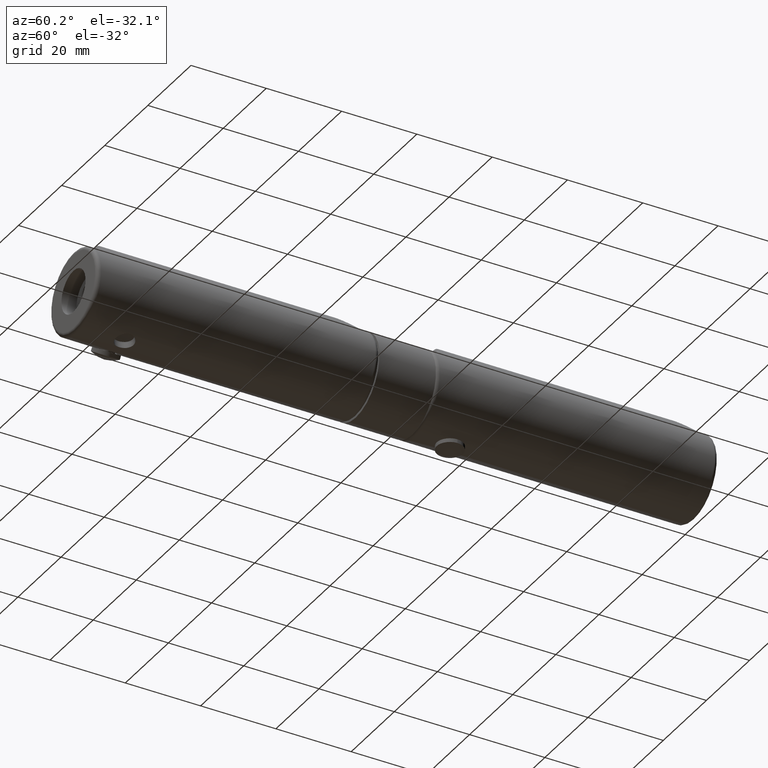
[diagram: clean part render]
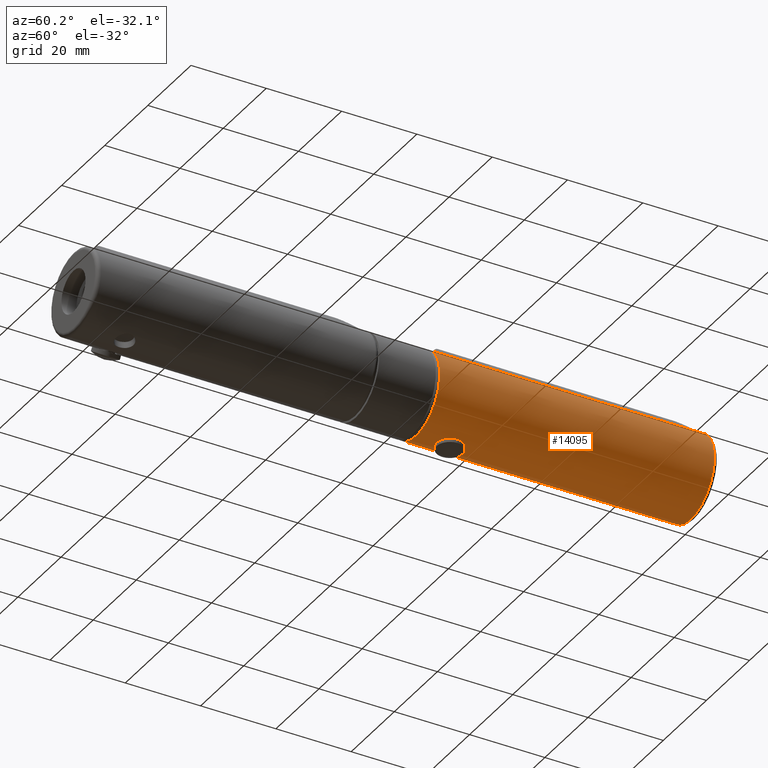
[diagram: same view with one face highlighted and labeled with its STEP entity id]
A machine part, auxiliary view. The second image highlights one B-rep face of the part: STEP entity #14095.
In plain terms, the highlighted cylindrical surface (bore or boss wall) has radius 11 mm, axis along (0, 1, 0).
Its self-contained STEP definition (entity closure, byte-faithful):
#323 = EDGE_CURVE ( 'NONE', #6508, #14559, #1928, .T. ) ;
#363 = AXIS2_PLACEMENT_3D ( 'NONE', #16258, #7394, #14999 ) ;
#472 = DIRECTION ( 'NONE',  ( 0.000000000000000000, -1.000000000000000000, 0.000000000000000000 ) ) ;
#535 = DIRECTION ( 'NONE',  ( -2.465190328815639121E-31, 0.000000000000000000, -1.000000000000000000 ) ) ;
#665 = CARTESIAN_POINT ( 'NONE',  ( -1.999956808515908957, 25.96449531061050209, -10.81921361551920135 ) ) ;
#719 = CARTESIAN_POINT ( 'NONE',  ( -1.652085630483463241, 25.61651558506136439, -10.87586390559808436 ) ) ;
#778 = CARTESIAN_POINT ( 'NONE',  ( 1.651020247030272170, 25.61567168080240364, -10.87601884763379623 ) ) ;
#882 = CARTESIAN_POINT ( 'NONE',  ( -0.6488575334635423575, 29.91984350061892073, -10.98201595571192613 ) ) ;
#893 = VERTEX_POINT ( 'NONE', #10747 ) ;
#1395 = EDGE_CURVE ( 'NONE', #8009, #14559, #4866, .T. ) ;
#1697 = ORIENTED_EDGE ( 'NONE', *, *, #1395, .F. ) ;
#1704 = CARTESIAN_POINT ( 'NONE',  ( -7.293008042015120651, -34.31640379061051505, 8.234806233245867801 ) ) ;
#1928 = CIRCLE ( 'NONE', #2630, 11.00000000000009948 ) ;
#1952 = CARTESIAN_POINT ( 'NONE',  ( 1.107559695936178201, 25.25280829105755487, -10.94514283014928147 ) ) ;
#2015 = CARTESIAN_POINT ( 'NONE',  ( 1.988350180081568386, 29.02423366750890921, -10.81919769480480653 ) ) ;
#2063 = CARTESIAN_POINT ( 'NONE',  ( -1.109823838377493210, 25.25388948399015732, -10.94491919029159277 ) ) ;
#2085 = ORIENTED_EDGE ( 'NONE', *, *, #323, .T. ) ;
#2119 = CARTESIAN_POINT ( 'NONE',  ( -2.483739591088216514, 27.17162348488600543, -10.71597479955624976 ) ) ;
#2177 = CARTESIAN_POINT ( 'NONE',  ( 2.167882144518500365, 26.24432027942801682, -10.78465457047772702 ) ) ;
#2279 = ORIENTED_EDGE ( 'NONE', *, *, #8944, .T. ) ;
#2406 = B_SPLINE_CURVE_WITH_KNOTS ( 'NONE', 3,
 ( #8181, #4477, #3370, #882, #8351, #7008, #13478, #14659, #4587, #13268, #5887, #3426, #14607, #9668, #12069, #8241, #2119, #8296, #15772, #5721, #665, #719, #9448, #12234, #2063, #14551, #10954, #12177, #14720, #7122, #4693, #1952, #6945, #15824, #778, #10899, #10727, #2177, #3206, #12117, #12015, #15988, #4640, #9617, #9501, #7071, #13432, #2015, #8405, #10788, #3256, #4534, #13320, #9554, #5774, #15874 ),
 .UNSPECIFIED., .T., .F.,
 ( 4, 2, 2, 2, 2, 2, 2, 2, 2, 2, 2, 2, 2, 2, 2, 2, 2, 2, 2, 2, 2, 2, 2, 2, 2, 2, 2, 4 ),
 ( 0.000000000000000000, 0.0004900491585293532699, 0.0009800983170587063229, 0.001470147475588059593, 0.001960196634117412646, 0.002940294951176118752, 0.003430344109705472239, 0.003920393268234825292, 0.004410442426764178345, 0.004900491585293531398, 0.005880589902352227963, 0.006370639060881576679, 0.006860688219410924528, 0.007350737377940272377, 0.007840786536469619358, 0.008820884853528315056, 0.009310934012057663772, 0.009800983170587010754, 0.01029103232911635947, 0.01078108148764570645, 0.01176117980470439348, 0.01225122896323373699, 0.01274127812176308050, 0.01323132728029242228, 0.01372137643882176579, 0.01470147475588045108, 0.01519152391440979286, 0.01568157307293913463 ),
 .UNSPECIFIED. ) ;
#2520 = LINE ( 'NONE', #4017, #8394 ) ;
#2630 = AXIS2_PLACEMENT_3D ( 'NONE', #9013, #4031, #2925 ) ;
#2742 = EDGE_LOOP ( 'NONE', ( #8957 ) ) ;
#2925 = DIRECTION ( 'NONE',  ( 2.465190328815639121E-31, 0.000000000000000000, 1.000000000000000000 ) ) ;
#3206 = CARTESIAN_POINT ( 'NONE',  ( 2.244920554423249115, 26.38762383493446251, -10.76868184056639777 ) ) ;
#3256 = CARTESIAN_POINT ( 'NONE',  ( 1.261791260852987984, 29.68266573074431491, -10.93156164976156042 ) ) ;
#3370 = CARTESIAN_POINT ( 'NONE',  ( -0.3286086563969000118, 29.98368174635178462, -10.99625876838048910 ) ) ;
#3376 = CARTESIAN_POINT ( 'NONE',  ( 0.000000000000000000, 36.49999999999997868, 0.000000000000000000 ) ) ;
#3426 = CARTESIAN_POINT ( 'NONE',  ( -2.371145507081335868, 28.30879520875879152, -10.74158953670655592 ) ) ;
#3662 = EDGE_CURVE ( 'NONE', #893, #893, #11113, .T. ) ;
#3727 = CARTESIAN_POINT ( 'NONE',  ( -7.293008042015120651, 34.31640379061051505, 8.234806233245867801 ) ) ;
#4017 = CARTESIAN_POINT ( 'NONE',  ( 7.293008042015121539, 37.49999999999997868, 8.234806233245864249 ) ) ;
#4031 = DIRECTION ( 'NONE',  ( 1.368455531567204171E-47, -1.000000000000000000, 6.938893903907280147E-17 ) ) ;
#4477 = CARTESIAN_POINT ( 'NONE',  ( -0.1657421987218730131, 29.99999999999996803, -11.00000000000007105 ) ) ;
#4507 = ORIENTED_EDGE ( 'NONE', *, *, #8902, .T. ) ;
#4534 = CARTESIAN_POINT ( 'NONE',  ( 0.8106389717548497797, 29.87052761574395987, -10.97112819082877166 ) ) ;
#4587 = CARTESIAN_POINT ( 'NONE',  ( -1.653202646344086313, 29.38237116042368058, -10.87568234456730210 ) ) ;
#4640 = CARTESIAN_POINT ( 'NONE',  ( 2.484025723721581702, 27.82612146208387571, -10.71590788550277829 ) ) ;
#4693 = CARTESIAN_POINT ( 'NONE',  ( 0.6558910415512544390, 25.06565344110171267, -10.98458770966550802 ) ) ;
#4866 = LINE ( 'NONE', #9147, #11146 ) ;
#5456 = FACE_BOUND ( 'NONE', #10983, .T. ) ;
#5721 = CARTESIAN_POINT ( 'NONE',  ( -2.183769885702495639, 26.23945554392442858, -10.78182195302494684 ) ) ;
#5774 = CARTESIAN_POINT ( 'NONE',  ( 0.1657421987218688220, 29.99999999999996803, -11.00000000000007461 ) ) ;
#5887 = CARTESIAN_POINT ( 'NONE',  ( -2.183862739981285550, 28.75962945137616700, -10.78179255487066257 ) ) ;
#6143 = EDGE_LOOP ( 'NONE', ( #2279 ) ) ;
#6226 = CYLINDRICAL_SURFACE ( 'NONE', #15901, 11.00000000000009948 ) ;
#6508 = VERTEX_POINT ( 'NONE', #12113 ) ;
#6938 = EDGE_LOOP ( 'NONE', ( #4507 ) ) ;
#6945 = CARTESIAN_POINT ( 'NONE',  ( 1.253719522869382486, 25.33091964188465184, -10.92917896778496889 ) ) ;
#7008 = CARTESIAN_POINT ( 'NONE',  ( -1.110435784794108649, 29.74583125934363181, -10.94486109688254771 ) ) ;
#7071 = CARTESIAN_POINT ( 'NONE',  ( 2.246882846291374580, 28.60824222040786324, -10.76826869899240080 ) ) ;
#7122 = CARTESIAN_POINT ( 'NONE',  ( 0.3258589452639140127, 24.99986420757655381, -11.00003086191187762 ) ) ;
#7394 = DIRECTION ( 'NONE',  ( -0.000000000000000000, 1.000000000000000000, 0.000000000000000000 ) ) ;
#7408 = AXIS2_PLACEMENT_3D ( 'NONE', #14969, #16182, #14905 ) ;
#7728 = DIRECTION ( 'NONE',  ( 0.000000000000000000, -1.000000000000000000, 0.000000000000000000 ) ) ;
#8009 = VERTEX_POINT ( 'NONE', #3727 ) ;
#8181 = CARTESIAN_POINT ( 'NONE',  ( 2.574980159653073031E-16, 29.99999999999996803, -11.00000000000007283 ) ) ;
#8241 = CARTESIAN_POINT ( 'NONE',  ( -2.500100012647283876, 27.33789890275445345, -10.71211930186590067 ) ) ;
#8296 = CARTESIAN_POINT ( 'NONE',  ( -2.419717851548156329, 26.85057024173767104, -10.73061246061765850 ) ) ;
#8351 = CARTESIAN_POINT ( 'NONE',  ( -0.8079343238143870121, 29.87151171323248988, -10.97133967164480062 ) ) ;
#8394 = VECTOR ( 'NONE', #7728, 1000.000000000000000 ) ;
#8405 = CARTESIAN_POINT ( 'NONE',  ( 1.883746366241870085, 29.15162242237256152, -10.83812754423553493 ) ) ;
#8902 = EDGE_CURVE ( 'NONE', #9534, #9534, #2406, .T. ) ;
#8944 = EDGE_CURVE ( 'NONE', #10156, #10156, #13840, .T. ) ;
#8957 = ORIENTED_EDGE ( 'NONE', *, *, #3662, .T. ) ;
#9013 = CARTESIAN_POINT ( 'NONE',  ( 0.000000000000000000, -34.31640379061051505, 0.000000000000000000 ) ) ;
#9147 = CARTESIAN_POINT ( 'NONE',  ( -7.293008042015120651, 37.49999999999997868, 8.234806233245867801 ) ) ;
#9170 = FACE_OUTER_BOUND ( 'NONE', #2742, .T. ) ;
#9448 = CARTESIAN_POINT ( 'NONE',  ( -1.526468283153412209, 25.51345907167027605, -10.89442284460500510 ) ) ;
#9501 = CARTESIAN_POINT ( 'NONE',  ( 2.371988759093444088, 28.30644446230806111, -10.74140412727276050 ) ) ;
#9534 = VERTEX_POINT ( 'NONE', #12032 ) ;
#9554 = CARTESIAN_POINT ( 'NONE',  ( 0.3292043719282596870, 29.98367810260738153, -10.99625701795264376 ) ) ;
#9617 = CARTESIAN_POINT ( 'NONE',  ( 2.420381413981155472, 28.14691020628586315, -10.73046221826188074 ) ) ;
#9668 = CARTESIAN_POINT ( 'NONE',  ( -2.483888440242242535, 27.82773439190667730, -10.71594095889446052 ) ) ;
#10156 = VERTEX_POINT ( 'NONE', #14570 ) ;
#10376 = FACE_OUTER_BOUND ( 'NONE', #6143, .T. ) ;
#10675 = ORIENTED_EDGE ( 'NONE', *, *, #14630, .T. ) ;
#10727 = CARTESIAN_POINT ( 'NONE',  ( 1.986945821249413546, 25.97406066418177772, -10.81945162660602655 ) ) ;
#10747 = CARTESIAN_POINT ( 'NONE',  ( 2.711709361697227380E-30, 36.49999999999997868, 11.00000000000009948 ) ) ;
#10788 = CARTESIAN_POINT ( 'NONE',  ( 1.539599840038648360, 29.49626158761977734, -10.89420343496205312 ) ) ;
#10871 = EDGE_CURVE ( 'NONE', #8009, #14180, #14817, .T. ) ;
#10899 = CARTESIAN_POINT ( 'NONE',  ( 1.881686793789689061, 25.84596980659015841, -10.83849199105978123 ) ) ;
#10954 = CARTESIAN_POINT ( 'NONE',  ( -0.6520502177671937405, 25.08096575726941424, -10.98183681505975606 ) ) ;
#10959 = DIRECTION ( 'NONE',  ( 2.465190328815639121E-31, 0.000000000000000000, 1.000000000000000000 ) ) ;
#10983 = EDGE_LOOP ( 'NONE', ( #10675, #2085, #1697, #15505 ) ) ;
#11017 = DIRECTION ( 'NONE',  ( 0.000000000000000000, -1.000000000000000000, -0.000000000000000000 ) ) ;
#11113 = CIRCLE ( 'NONE', #14781, 11.00000000000009948 ) ;
#11146 = VECTOR ( 'NONE', #15591, 1000.000000000000000 ) ;
#12015 = CARTESIAN_POINT ( 'NONE',  ( 2.499797266456076361, 27.16847957345442310, -10.71218995676223784 ) ) ;
#12032 = CARTESIAN_POINT ( 'NONE',  ( 9.244463733058732095E-30, 29.99999999999997158, -11.00000000000007105 ) ) ;
#12069 = CARTESIAN_POINT ( 'NONE',  ( -2.499899044650433666, 27.66517144281923635, -10.71216620377049722 ) ) ;
#12113 = CARTESIAN_POINT ( 'NONE',  ( 7.293008042015121539, -34.31640379061051505, 8.234806233245864249 ) ) ;
#12117 = CARTESIAN_POINT ( 'NONE',  ( 2.434490643542543520, 26.84315038280069743, -10.72799901298326652 ) ) ;
#12177 = CARTESIAN_POINT ( 'NONE',  ( -0.3304439661707668785, 25.01651395429433933, -10.99621371674420800 ) ) ;
#12234 = CARTESIAN_POINT ( 'NONE',  ( -1.256226262986096076, 25.33243319466585675, -10.92888146667849725 ) ) ;
#12567 = FACE_BOUND ( 'NONE', #6938, .T. ) ;
#13268 = CARTESIAN_POINT ( 'NONE',  ( -1.997817613981564655, 29.03763632994315103, -10.81956129334797367 ) ) ;
#13320 = CARTESIAN_POINT ( 'NONE',  ( 0.6516460240097678991, 29.91917132408192259, -10.98186693521469337 ) ) ;
#13432 = CARTESIAN_POINT ( 'NONE',  ( 2.170216062768897558, 28.75179349443028087, -10.78418923418909081 ) ) ;
#13478 = CARTESIAN_POINT ( 'NONE',  ( -1.253819991855884552, 29.66900212588907593, -10.92916469482725006 ) ) ;
#13840 = CIRCLE ( 'NONE', #363, 11.00000000000009948 ) ;
#14095 = ADVANCED_FACE ( 'NONE', ( #12567, #9170, #10376, #5456 ), #6226, .T. ) ;
#14180 = VERTEX_POINT ( 'NONE', #14253 ) ;
#14253 = CARTESIAN_POINT ( 'NONE',  ( 7.293008042015121539, 34.31640379061051505, 8.234806233245864249 ) ) ;
#14551 = CARTESIAN_POINT ( 'NONE',  ( -0.8078931435517139326, 25.12849624268417159, -10.97133873795018033 ) ) ;
#14559 = VERTEX_POINT ( 'NONE', #1704 ) ;
#14570 = CARTESIAN_POINT ( 'NONE',  ( 2.711709361697227380E-30, -36.49999999999997868, 11.00000000000009948 ) ) ;
#14607 = CARTESIAN_POINT ( 'NONE',  ( -2.419447701549189755, 28.15067997869599026, -10.73067403463311287 ) ) ;
#14630 = EDGE_CURVE ( 'NONE', #14180, #6508, #2520, .T. ) ;
#14659 = CARTESIAN_POINT ( 'NONE',  ( -1.525165024046294615, 29.48758809704493800, -10.89461229911655415 ) ) ;
#14720 = CARTESIAN_POINT ( 'NONE',  ( -0.1644896879557243563, 25.00006822078127300, -10.99998449527824462 ) ) ;
#14781 = AXIS2_PLACEMENT_3D ( 'NONE', #3376, #11017, #10959 ) ;
#14817 = CIRCLE ( 'NONE', #7408, 11.00000000000009948 ) ;
#14905 = DIRECTION ( 'NONE',  ( 2.465190328815639121E-31, 0.000000000000000000, 1.000000000000000000 ) ) ;
#14969 = CARTESIAN_POINT ( 'NONE',  ( 0.000000000000000000, 34.31640379061051505, 0.000000000000000000 ) ) ;
#14999 = DIRECTION ( 'NONE',  ( 2.465190328815639121E-31, 0.000000000000000000, 1.000000000000000000 ) ) ;
#15505 = ORIENTED_EDGE ( 'NONE', *, *, #10871, .T. ) ;
#15591 = DIRECTION ( 'NONE',  ( 0.000000000000000000, -1.000000000000000000, 0.000000000000000000 ) ) ;
#15692 = CARTESIAN_POINT ( 'NONE',  ( 0.000000000000000000, 37.49999999999997868, 0.000000000000000000 ) ) ;
#15772 = CARTESIAN_POINT ( 'NONE',  ( -2.372356590399901766, 26.69446910807395668, -10.74132478296294835 ) ) ;
#15824 = CARTESIAN_POINT ( 'NONE',  ( 1.525499406302146310, 25.51264653285898376, -10.89456823895600657 ) ) ;
#15874 = CARTESIAN_POINT ( 'NONE',  ( 2.574980159653073031E-16, 29.99999999999996803, -11.00000000000007283 ) ) ;
#15901 = AXIS2_PLACEMENT_3D ( 'NONE', #15692, #472, #535 ) ;
#15988 = CARTESIAN_POINT ( 'NONE',  ( 2.500100662336008916, 27.66346167696617186, -10.71211915024154848 ) ) ;
#16182 = DIRECTION ( 'NONE',  ( 1.368455531567204171E-47, 1.000000000000000000, 6.938893903907280147E-17 ) ) ;
#16258 = CARTESIAN_POINT ( 'NONE',  ( 0.000000000000000000, -36.49999999999997868, 0.000000000000000000 ) ) ;